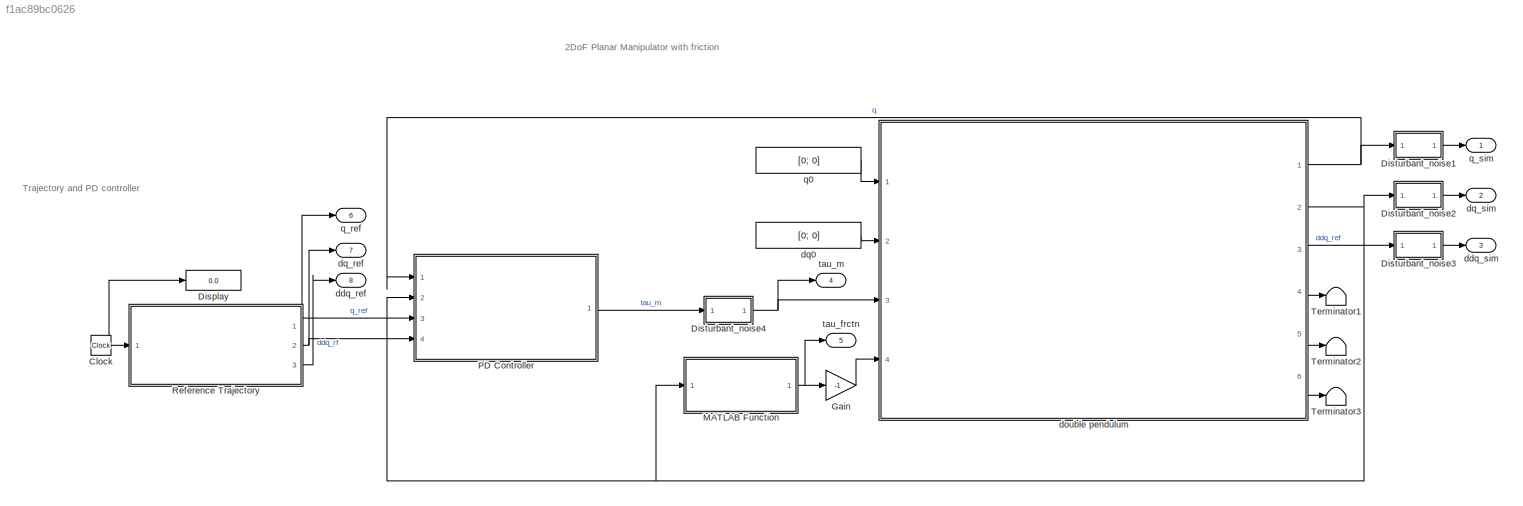
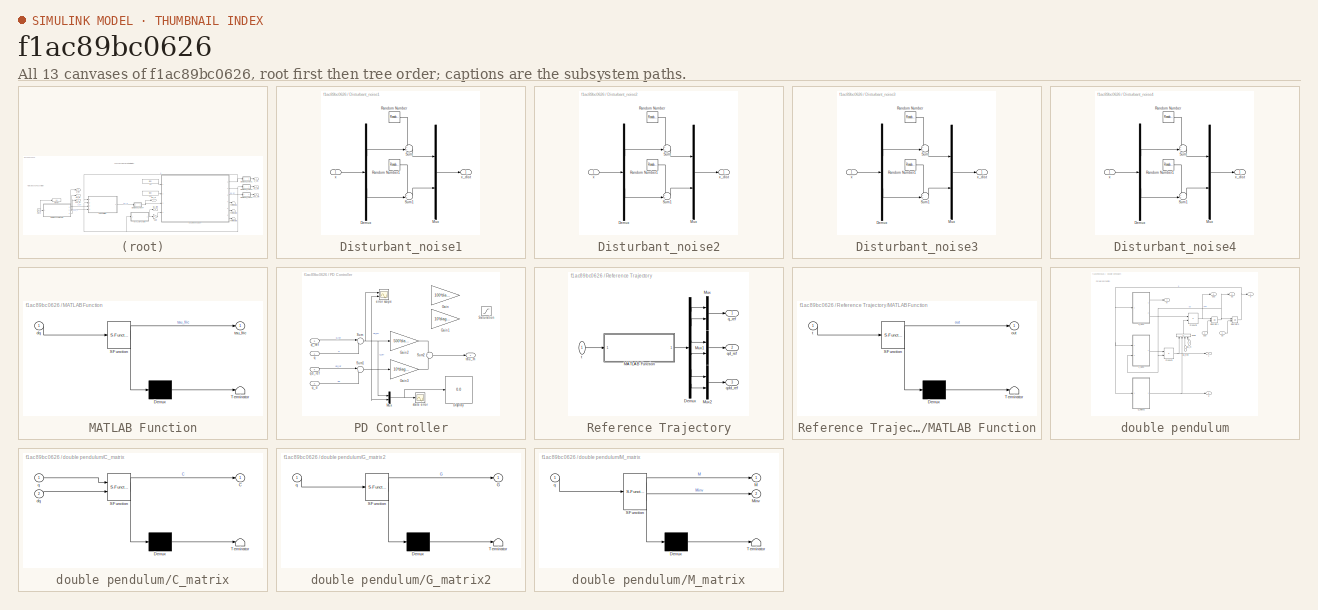
[diagram: thumbnail index - all 13 canvases of the model, root first then tree order]
MODEL slx_f1ac89bc0626
KIND model
CONFIG AbsTol = auto
CONFIG EnableMultiTasking = off
CONFIG FixedStep = 1e-3
CONFIG MaxStep = auto
CONFIG MinStep = auto
CONFIG RelTol = 1e-3
CONFIG SampleTimeConstraint = Unconstrained
CONFIG Solver = ode4
CONFIG SolverName = ode4
CONFIG StartTime = 0.0
CONFIG StopTime = 30
BLOCK [Clock] Clock
BLOCK [Display] Display
  Decimation = 1
  Ports = [1]
BLOCK [SubSystem] Disturbant_noise1
  Ports = [1, 1]
  RequestExecContextInheritance = off
BLOCK [Demux] Disturbant_noise1/Demux
  Outputs = 2
  Ports = [1, 2]
BLOCK [Mux] Disturbant_noise1/Mux
  DisplayOption = bar
  Inputs = 2
  Ports = [2, 1]
BLOCK [RandomNumber] Disturbant_noise1/Random Number
  SampleTime = T_smp
  Seed = seed
  Variance = q_dist_var
BLOCK [RandomNumber] Disturbant_noise1/Random Number1
  SampleTime = T_smp
  Seed = seed
  Variance = q_dist_var
BLOCK [Sum] Disturbant_noise1/Sum
  Inputs = ++|
  Ports = [2, 1]
BLOCK [Sum] Disturbant_noise1/Sum1
  Inputs = ++|
  Ports = [2, 1]
BLOCK [Inport] Disturbant_noise1/x
BLOCK [Outport] Disturbant_noise1/x_dist
  VectorParamsAs1DForOutWhenUnconnected = off
BLOCK [SubSystem] Disturbant_noise2
  Ports = [1, 1]
  RequestExecContextInheritance = off
BLOCK [Demux] Disturbant_noise2/Demux
  Outputs = 2
  Ports = [1, 2]
BLOCK [Mux] Disturbant_noise2/Mux
  DisplayOption = bar
  Inputs = 2
  Ports = [2, 1]
BLOCK [RandomNumber] Disturbant_noise2/Random Number
  SampleTime = T_smp
  Seed = seed
  Variance = q_dist_var
BLOCK [RandomNumber] Disturbant_noise2/Random Number1
  SampleTime = T_smp
  Seed = seed
  Variance = q_dist_var
BLOCK [Sum] Disturbant_noise2/Sum
  Inputs = ++|
  Ports = [2, 1]
BLOCK [Sum] Disturbant_noise2/Sum1
  Inputs = ++|
  Ports = [2, 1]
BLOCK [Inport] Disturbant_noise2/x
BLOCK [Outport] Disturbant_noise2/x_dist
  VectorParamsAs1DForOutWhenUnconnected = off
BLOCK [SubSystem] Disturbant_noise3
  Ports = [1, 1]
  RequestExecContextInheritance = off
BLOCK [Demux] Disturbant_noise3/Demux
  Outputs = 2
  Ports = [1, 2]
BLOCK [Mux] Disturbant_noise3/Mux
  DisplayOption = bar
  Inputs = 2
  Ports = [2, 1]
BLOCK [RandomNumber] Disturbant_noise3/Random Number
  SampleTime = T_smp
  Seed = seed
  Variance = q_dist_var
BLOCK [RandomNumber] Disturbant_noise3/Random Number1
  SampleTime = T_smp
  Seed = seed
  Variance = q_dist_var
BLOCK [Sum] Disturbant_noise3/Sum
  Inputs = ++|
  Ports = [2, 1]
BLOCK [Sum] Disturbant_noise3/Sum1
  Inputs = ++|
  Ports = [2, 1]
BLOCK [Inport] Disturbant_noise3/x
BLOCK [Outport] Disturbant_noise3/x_dist
  VectorParamsAs1DForOutWhenUnconnected = off
BLOCK [SubSystem] Disturbant_noise4
  Ports = [1, 1]
  RequestExecContextInheritance = off
BLOCK [Demux] Disturbant_noise4/Demux
  Outputs = 2
  Ports = [1, 2]
BLOCK [Mux] Disturbant_noise4/Mux
  DisplayOption = bar
  Inputs = 2
  Ports = [2, 1]
BLOCK [RandomNumber] Disturbant_noise4/Random Number
  SampleTime = T_smp
  Seed = seed
  Variance = q_dist_var
BLOCK [RandomNumber] Disturbant_noise4/Random Number1
  SampleTime = T_smp
  Seed = seed
  Variance = q_dist_var
BLOCK [Sum] Disturbant_noise4/Sum
  Inputs = ++|
  Ports = [2, 1]
BLOCK [Sum] Disturbant_noise4/Sum1
  Inputs = ++|
  Ports = [2, 1]
BLOCK [Inport] Disturbant_noise4/x
BLOCK [Outport] Disturbant_noise4/x_dist
  VectorParamsAs1DForOutWhenUnconnected = off
BLOCK [Gain] Gain
  Gain = -1
BLOCK [SubSystem] MATLAB Function
  ErrorFcn = Stateflow.Translate.translate
  PermitHierarchicalResolution = ExplicitOnly
  Ports = [1, 1]
  RequestExecContextInheritance = off
  SFBlockType = MATLAB Function
  TreatAsAtomicUnit = on
BLOCK [Demux] MATLAB Function/ Demux 
  Outputs = 1
  Ports = [1, 1]
BLOCK [S-Function] MATLAB Function/ SFunction 
  EnableBusSupport = off
  FunctionName = sf_sfun
  Parameters = constPar,f_c,f_nu
  PortCounts = [1 2]
  Ports = [1, 2]
  SFcnIsStateOwnerBlock = off
  SFunctionDeploymentMode = off
  Tag = Stateflow S-Function 3
BLOCK [Terminator] MATLAB Function/ Terminator 
BLOCK [Inport] MATLAB Function/dq
BLOCK [Outport] MATLAB Function/tau_fric
  VectorParamsAs1DForOutWhenUnconnected = off
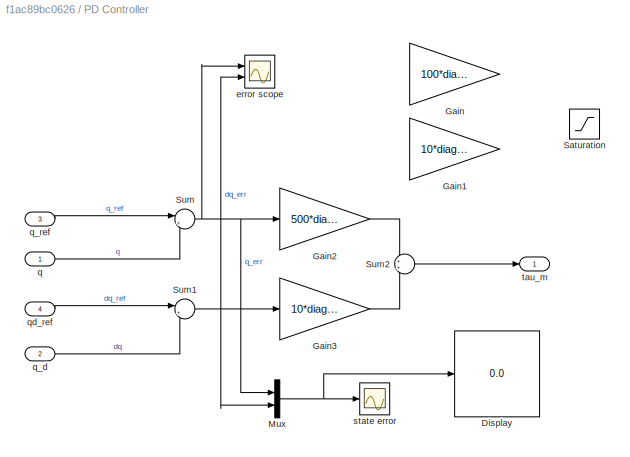
BLOCK [SubSystem] PD Controller
  Ports = [4, 1]
  RequestExecContextInheritance = off
BLOCK [Display] PD Controller/Display
  Decimation = 1
  Ports = [1]
BLOCK [Gain] PD Controller/Gain
  Commented = on
  Gain = 100*diag([10,1])
  Multiplication = Matrix(K*u)
BLOCK [Gain] PD Controller/Gain1
  Commented = on
  Gain = 10*diag([10,1])
  Multiplication = Matrix(K*u)
BLOCK [Gain] PD Controller/Gain2
  Gain = 500*diag([10,1])
  Multiplication = Matrix(K*u)
BLOCK [Gain] PD Controller/Gain3
  Gain = 10*diag([10,1])
  Multiplication = Matrix(K*u)
BLOCK [Mux] PD Controller/Mux
  DisplayOption = bar
  Inputs = 2
  Ports = [2, 1]
BLOCK [Saturate] PD Controller/Saturation
  Commented = on
  LowerLimit = constPar.minTorque
  UpperLimit = constPar.maxTorque
BLOCK [Sum] PD Controller/Sum
  Inputs = |+-
  Ports = [2, 1]
BLOCK [Sum] PD Controller/Sum1
  Inputs = |+-
  Ports = [2, 1]
BLOCK [Sum] PD Controller/Sum2
  Ports = [2, 1]
BLOCK [Scope] PD Controller/error scope
  Floating = off
  NumInputPorts = 2
  Ports = [2]
  ScopeSpecificationString = Simulink.scopes.TimeScopeBlockCfg('CurrentConfiguration', extmgr.ConfigurationSet(extmgr.Configuration('Core','General UI',true,'FigureColor',[0 0 0]),extmgr.Configuration('Core','Source UI',true),extmgr.Configuration('Sources','WiredSimulink',true,'DataLoggingVariableName','ScopeData2'),extmgr.Configuration('Visuals','Time Domain',true,'SerializedDisplays',{struct('MinYLimReal','-0.15115','MaxYLi...<+2631ch>
BLOCK [Inport] PD Controller/q
BLOCK [Inport] PD Controller/q_d
  Port = 2
BLOCK [Inport] PD Controller/q_ref
  Port = 3
BLOCK [Inport] PD Controller/qd_ref
  Port = 4
BLOCK [Scope] PD Controller/state error
  Floating = off
  NumInputPorts = 1
  Ports = [1]
  ScopeSpecificationString = Simulink.scopes.TimeScopeBlockCfg('CurrentConfiguration', extmgr.ConfigurationSet(extmgr.Configuration('Core','General UI',true),extmgr.Configuration('Core','Source UI',true),extmgr.Configuration('Sources','WiredSimulink',true,'DataLoggingVariableName','ScopeData2'),extmgr.Configuration('Visuals','Time Domain',true,'SerializedDisplays',{struct('MinYLimReal','-0.24012','MaxYLimReal','0.73566','YLab...<+1439ch>
BLOCK [Outport] PD Controller/tau_m
  VectorParamsAs1DForOutWhenUnconnected = off
BLOCK [SubSystem] Reference Trajectory
  Ports = [1, 3]
  RequestExecContextInheritance = off
BLOCK [Demux] Reference Trajectory/Demux
  Outputs = 6
  Ports = [1, 6]
BLOCK [SubSystem] Reference Trajectory/MATLAB Function
  ErrorFcn = Stateflow.Translate.translate
  PermitHierarchicalResolution = ExplicitOnly
  Ports = [1, 1]
  RequestExecContextInheritance = off
  SFBlockType = MATLAB Function
  TreatAsAtomicUnit = on
BLOCK [Demux] Reference Trajectory/MATLAB Function/ Demux 
  Outputs = 1
  Ports = [1, 1]
BLOCK [S-Function] Reference Trajectory/MATLAB Function/ SFunction 
  EnableBusSupport = off
  FunctionName = sf_sfun
  Parameters = constPar,lambdas
  PortCounts = [1 2]
  Ports = [1, 2]
  SFcnIsStateOwnerBlock = off
  SFunctionDeploymentMode = off
  Tag = Stateflow S-Function 2
BLOCK [Terminator] Reference Trajectory/MATLAB Function/ Terminator 
BLOCK [Outport] Reference Trajectory/MATLAB Function/out
  VectorParamsAs1DForOutWhenUnconnected = off
BLOCK [Inport] Reference Trajectory/MATLAB Function/t
BLOCK [Mux] Reference Trajectory/Mux
  DisplayOption = bar
  Inputs = 2
  Ports = [2, 1]
BLOCK [Mux] Reference Trajectory/Mux1
  DisplayOption = bar
  Inputs = 2
  Ports = [2, 1]
BLOCK [Mux] Reference Trajectory/Mux2
  DisplayOption = bar
  Inputs = 2
  Ports = [2, 1]
BLOCK [Outport] Reference Trajectory/q_ref
  VectorParamsAs1DForOutWhenUnconnected = off
BLOCK [Outport] Reference Trajectory/qd_ref
  Port = 2
  VectorParamsAs1DForOutWhenUnconnected = off
BLOCK [Outport] Reference Trajectory/qdd_ref
  Port = 3
  VectorParamsAs1DForOutWhenUnconnected = off
BLOCK [Inport] Reference Trajectory/t
  NameLocation = top
BLOCK [Terminator] Terminator1
BLOCK [Terminator] Terminator2
BLOCK [Terminator] Terminator3
BLOCK [Outport] ddq_ref
  Port = 8
  VectorParamsAs1DForOutWhenUnconnected = off
BLOCK [Outport] ddq_sim
  Port = 3
  VectorParamsAs1DForOutWhenUnconnected = off
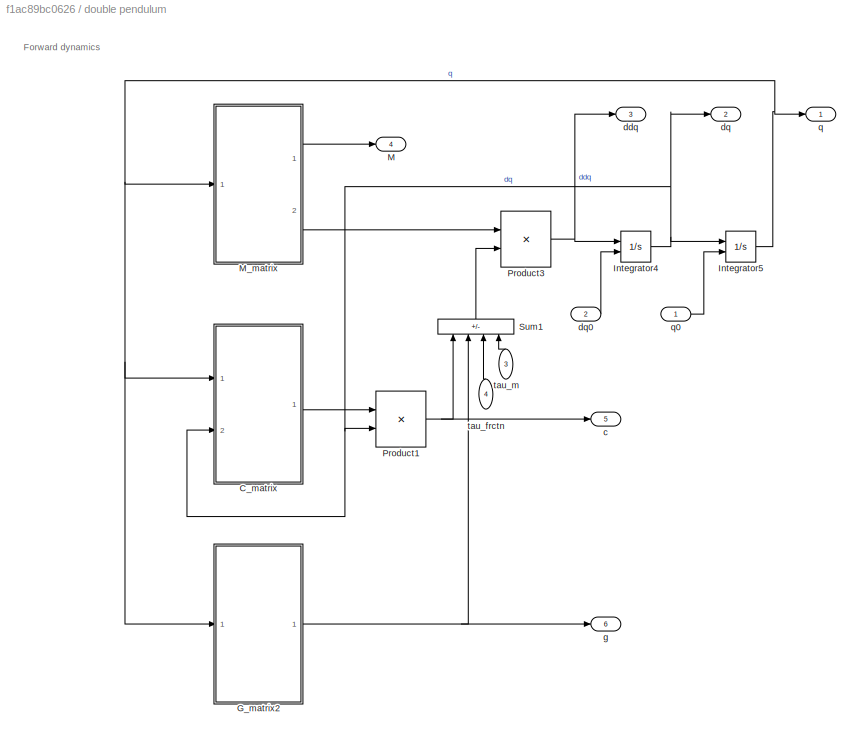
BLOCK [SubSystem] double pendulum
  Ports = [4, 6]
  RequestExecContextInheritance = off
BLOCK [SubSystem] double pendulum/C_matrix
  ErrorFcn = Stateflow.Translate.translate
  PermitHierarchicalResolution = ExplicitOnly
  Ports = [2, 1]
  RequestExecContextInheritance = off
  SFBlockType = MATLAB Function
  TreatAsAtomicUnit = on
BLOCK [Demux] double pendulum/C_matrix/ Demux 
  Outputs = 1
  Ports = [1, 1]
BLOCK [S-Function] double pendulum/C_matrix/ SFunction 
  EnableBusSupport = off
  FunctionName = sf_sfun
  Parameters = l1,lc2,m2
  PortCounts = [2 2]
  Ports = [2, 2]
  SFcnIsStateOwnerBlock = off
  SFunctionDeploymentMode = off
  Tag = Stateflow S-Function 6
BLOCK [Terminator] double pendulum/C_matrix/ Terminator 
BLOCK [Outport] double pendulum/C_matrix/C
  VectorParamsAs1DForOutWhenUnconnected = off
BLOCK [Inport] double pendulum/C_matrix/dq
  Port = 2
BLOCK [Inport] double pendulum/C_matrix/q
BLOCK [SubSystem] double pendulum/G_matrix2
  ErrorFcn = Stateflow.Translate.translate
  PermitHierarchicalResolution = ExplicitOnly
  Ports = [1, 1]
  RequestExecContextInheritance = off
  SFBlockType = MATLAB Function
  TreatAsAtomicUnit = on
BLOCK [Demux] double pendulum/G_matrix2/ Demux 
  Outputs = 1
  Ports = [1, 1]
BLOCK [S-Function] double pendulum/G_matrix2/ SFunction 
  EnableBusSupport = off
  FunctionName = sf_sfun
  Parameters = g,l1,lc1,lc2,m1,m2
  PortCounts = [1 2]
  Ports = [1, 2]
  SFcnIsStateOwnerBlock = off
  SFunctionDeploymentMode = off
  Tag = Stateflow S-Function 7
BLOCK [Terminator] double pendulum/G_matrix2/ Terminator 
BLOCK [Outport] double pendulum/G_matrix2/G
  VectorParamsAs1DForOutWhenUnconnected = off
BLOCK [Inport] double pendulum/G_matrix2/q
BLOCK [Integrator] double pendulum/Integrator4
  InitialCondition = [0,0]
  InitialConditionSource = external
  Ports = [2, 1]
BLOCK [Integrator] double pendulum/Integrator5
  InitialConditionSource = external
  Ports = [2, 1]
BLOCK [Outport] double pendulum/M
  Port = 4
  VectorParamsAs1DForOutWhenUnconnected = off
BLOCK [SubSystem] double pendulum/M_matrix
  ErrorFcn = Stateflow.Translate.translate
  PermitHierarchicalResolution = ExplicitOnly
  Ports = [1, 2]
  RequestExecContextInheritance = off
  SFBlockType = MATLAB Function
  TreatAsAtomicUnit = on
BLOCK [Demux] double pendulum/M_matrix/ Demux 
  Outputs = 1
  Ports = [1, 1]
BLOCK [S-Function] double pendulum/M_matrix/ SFunction 
  EnableBusSupport = off
  FunctionName = sf_sfun
  Parameters = I1zz,I2zz,l1,lc1,lc2,m1,m2
  PortCounts = [1 3]
  Ports = [1, 3]
  SFcnIsStateOwnerBlock = off
  SFunctionDeploymentMode = off
  Tag = Stateflow S-Function 9
BLOCK [Terminator] double pendulum/M_matrix/ Terminator 
BLOCK [Outport] double pendulum/M_matrix/M
  VectorParamsAs1DForOutWhenUnconnected = off
BLOCK [Outport] double pendulum/M_matrix/Minv
  Port = 2
  VectorParamsAs1DForOutWhenUnconnected = off
BLOCK [Inport] double pendulum/M_matrix/q
BLOCK [Product] double pendulum/Product1
  Multiplication = Matrix(*)
  Ports = [2, 1]
BLOCK [Product] double pendulum/Product3
  Multiplication = Matrix(*)
  Ports = [2, 1]
BLOCK [Sum] double pendulum/Sum1
  IconShape = rectangular
  Inputs = ---+
  NameLocation = right
  Ports = [4, 1]
BLOCK [Outport] double pendulum/c
  Port = 5
  VectorParamsAs1DForOutWhenUnconnected = off
BLOCK [Outport] double pendulum/ddq
  Port = 3
  VectorParamsAs1DForOutWhenUnconnected = off
BLOCK [Outport] double pendulum/dq
  Port = 2
  VectorParamsAs1DForOutWhenUnconnected = off
BLOCK [Inport] double pendulum/dq0
  Port = 2
BLOCK [Outport] double pendulum/g
  Port = 6
  VectorParamsAs1DForOutWhenUnconnected = off
BLOCK [Outport] double pendulum/q
  VectorParamsAs1DForOutWhenUnconnected = off
BLOCK [Inport] double pendulum/q0
BLOCK [Inport] double pendulum/tau_frctn
  NameLocation = right
  Port = 4
BLOCK [Inport] double pendulum/tau_m
  NameLocation = right
  Port = 3
BLOCK [Constant] dq0
  Value = [0; 0]
BLOCK [Outport] dq_ref
  Port = 7
  VectorParamsAs1DForOutWhenUnconnected = off
BLOCK [Outport] dq_sim
  Port = 2
  VectorParamsAs1DForOutWhenUnconnected = off
BLOCK [Constant] q0
  Value = [0; 0]
BLOCK [Outport] q_ref
  Port = 6
  VectorParamsAs1DForOutWhenUnconnected = off
BLOCK [Outport] q_sim
  VectorParamsAs1DForOutWhenUnconnected = off
BLOCK [Outport] tau_frctn
  Port = 5
  VectorParamsAs1DForOutWhenUnconnected = off
BLOCK [Outport] tau_m
  Port = 4
  VectorParamsAs1DForOutWhenUnconnected = off
ANNOTATION (root): 2DoF Planar Manipulator with friction
ANNOTATION (root): Trajectory and PD controller
ANNOTATION double pendulum: Forward dynamics
NET Clock:1 -> Display:1, Reference Trajectory:1
LINE Disturbant_noise1/Demux:1 -> Disturbant_noise1/Sum:2
LINE Disturbant_noise1/Demux:2 -> Disturbant_noise1/Sum1:2
LINE Disturbant_noise1/Mux:1 -> Disturbant_noise1/x_dist:1
LINE Disturbant_noise1/Random Number1:1 -> Disturbant_noise1/Sum1:1
LINE Disturbant_noise1/Random Number:1 -> Disturbant_noise1/Sum:1
LINE Disturbant_noise1/Sum1:1 -> Disturbant_noise1/Mux:2
LINE Disturbant_noise1/Sum:1 -> Disturbant_noise1/Mux:1
LINE Disturbant_noise1/x:1 -> Disturbant_noise1/Demux:1
LINE Disturbant_noise1:1 -> q_sim:1
LINE Disturbant_noise2/Demux:1 -> Disturbant_noise2/Sum:2
LINE Disturbant_noise2/Demux:2 -> Disturbant_noise2/Sum1:2
LINE Disturbant_noise2/Mux:1 -> Disturbant_noise2/x_dist:1
LINE Disturbant_noise2/Random Number1:1 -> Disturbant_noise2/Sum1:1
LINE Disturbant_noise2/Random Number:1 -> Disturbant_noise2/Sum:1
LINE Disturbant_noise2/Sum1:1 -> Disturbant_noise2/Mux:2
LINE Disturbant_noise2/Sum:1 -> Disturbant_noise2/Mux:1
LINE Disturbant_noise2/x:1 -> Disturbant_noise2/Demux:1
LINE Disturbant_noise2:1 -> dq_sim:1
LINE Disturbant_noise3/Demux:1 -> Disturbant_noise3/Sum:2
LINE Disturbant_noise3/Demux:2 -> Disturbant_noise3/Sum1:2
LINE Disturbant_noise3/Mux:1 -> Disturbant_noise3/x_dist:1
LINE Disturbant_noise3/Random Number1:1 -> Disturbant_noise3/Sum1:1
LINE Disturbant_noise3/Random Number:1 -> Disturbant_noise3/Sum:1
LINE Disturbant_noise3/Sum1:1 -> Disturbant_noise3/Mux:2
LINE Disturbant_noise3/Sum:1 -> Disturbant_noise3/Mux:1
LINE Disturbant_noise3/x:1 -> Disturbant_noise3/Demux:1
LINE Disturbant_noise3:1 -> ddq_sim:1
LINE Disturbant_noise4/Demux:1 -> Disturbant_noise4/Sum:2
LINE Disturbant_noise4/Demux:2 -> Disturbant_noise4/Sum1:2
LINE Disturbant_noise4/Mux:1 -> Disturbant_noise4/x_dist:1
LINE Disturbant_noise4/Random Number1:1 -> Disturbant_noise4/Sum1:1
LINE Disturbant_noise4/Random Number:1 -> Disturbant_noise4/Sum:1
LINE Disturbant_noise4/Sum1:1 -> Disturbant_noise4/Mux:2
LINE Disturbant_noise4/Sum:1 -> Disturbant_noise4/Mux:1
LINE Disturbant_noise4/x:1 -> Disturbant_noise4/Demux:1
NET Disturbant_noise4:1 -> double pendulum:3, tau_m:1
LINE Gain:1 -> double pendulum:4
NET MATLAB Function:1 -> Gain:1, tau_frctn:1
LINE PD Controller/Gain2:1 -> PD Controller/Sum2:1
LINE PD Controller/Gain3:1 -> PD Controller/Sum2:2
NET PD Controller/Mux:1 -> PD Controller/Display:1, PD Controller/state error:1
NET PD Controller/Sum1:1 -> PD Controller/Gain3:1, PD Controller/Mux:2, PD Controller/error scope:2
LINE PD Controller/Sum2:1 -> PD Controller/tau_m:1
NET PD Controller/Sum:1 -> PD Controller/Gain2:1, PD Controller/Mux:1, PD Controller/error scope:1
LINE PD Controller/q:1 -> PD Controller/Sum:2
LINE PD Controller/q_d:1 -> PD Controller/Sum1:2
LINE PD Controller/q_ref:1 -> PD Controller/Sum:1
LINE PD Controller/qd_ref:1 -> PD Controller/Sum1:1
LINE PD Controller:1 -> Disturbant_noise4:1
LINE Reference Trajectory/Demux:1 -> Reference Trajectory/Mux:1
LINE Reference Trajectory/Demux:2 -> Reference Trajectory/Mux:2
LINE Reference Trajectory/Demux:3 -> Reference Trajectory/Mux1:1
LINE Reference Trajectory/Demux:4 -> Reference Trajectory/Mux1:2
LINE Reference Trajectory/Demux:5 -> Reference Trajectory/Mux2:1
LINE Reference Trajectory/Demux:6 -> Reference Trajectory/Mux2:2
LINE Reference Trajectory/MATLAB Function:1 -> Reference Trajectory/Demux:1
LINE Reference Trajectory/Mux1:1 -> Reference Trajectory/qd_ref:1
LINE Reference Trajectory/Mux2:1 -> Reference Trajectory/qdd_ref:1
LINE Reference Trajectory/Mux:1 -> Reference Trajectory/q_ref:1
LINE Reference Trajectory/t:1 -> Reference Trajectory/MATLAB Function:1
NET Reference Trajectory:1 -> PD Controller:3, q_ref:1
NET Reference Trajectory:2 -> PD Controller:4, dq_ref:1
LINE Reference Trajectory:3 -> ddq_ref:1
LINE double pendulum/C_matrix:1 -> double pendulum/Product1:1
NET double pendulum/G_matrix2:1 -> double pendulum/Sum1:2, double pendulum/g:1
NET double pendulum/Integrator4:1 -> double pendulum/C_matrix:2, double pendulum/Integrator5:1, double pendulum/Product1:2, double pendulum/dq:1
NET double pendulum/Integrator5:1 -> double pendulum/C_matrix:1, double pendulum/G_matrix2:1, double pendulum/M_matrix:1, double pendulum/q:1
LINE double pendulum/M_matrix:1 -> double pendulum/M:1
LINE double pendulum/M_matrix:2 -> double pendulum/Product3:1
NET double pendulum/Product1:1 -> double pendulum/Sum1:1, double pendulum/c:1
NET double pendulum/Product3:1 -> double pendulum/Integrator4:1, double pendulum/ddq:1
LINE double pendulum/Sum1:1 -> double pendulum/Product3:2
LINE double pendulum/dq0:1 -> double pendulum/Integrator4:2
LINE double pendulum/q0:1 -> double pendulum/Integrator5:2
LINE double pendulum/tau_frctn:1 -> double pendulum/Sum1:3
LINE double pendulum/tau_m:1 -> double pendulum/Sum1:4
NET double pendulum:1 -> Disturbant_noise1:1, PD Controller:1
NET double pendulum:2 -> Disturbant_noise2:1, MATLAB Function:1, PD Controller:2
LINE double pendulum:3 -> Disturbant_noise3:1
LINE double pendulum:4 -> Terminator1:1
LINE double pendulum:5 -> Terminator2:1
LINE double pendulum:6 -> Terminator3:1
LINE dq0:1 -> double pendulum:2
LINE q0:1 -> double pendulum:1
note: NET lines group one-source signal fan-out (src -> all destinations, sorted); 1:1 wires keep LINE
CHART Reference Trajectory/MATLAB Function states=1 transitions=1
  STATE_LABEL 'eML_blk_kernel()'
  STATE_LABEL 'SCRIPT:\nfunction out = fcn_twoLink_refOptTrajectory(t, constPar, lambdas)\n    \n    Q = zeros(6,1);\n    if(constPar.test_trajectory)\n        param           = constPar.a_test;\n    else\n        param           = constPar.a_opt;   \n    end\n    noj=2;\n    omega           = constPar.omega;\n    constPar.n_cos = numel(param)/noj;\n    n_cos  = constPar.n_cos;\n   \n    a_im = zeros(2,5); % Parameters from e...<+1255ch>'
CHART MATLAB Function states=1 transitions=1
  STATE_LABEL 'eML_blk_kernel()'
  STATE_LABEL 'SCRIPT:\nfunction tau_fric = fcn_friction_twoLink(dq, f_nu, f_c, constPar)\n    fvis = f_nu*eye(2)*dq;\n\n    if constPar.useCoulomb  % A continuous friction model to ease the simulation\n        tau_fric = fvis + f_c*eye(2)*tanh(constPar.tanh_coef*dq);\n    else\n        tau_fric = fvis;\n    end\nend'
CHART double pendulum/C_matrix states=1 transitions=1
  STATE_LABEL 'eML_blk_kernel()'
  STATE_LABEL 'SCRIPT:\nfunction C = C_matrix(q,dq, l1, lc2, m2)\n%#codegen\n\n%    This function was generated by the Symbolic Math Toolbox version 8.3.\n%    05-Nov-2019 15:18:30\n\ndq1  = dq(1);\ndq2  = dq(2);\nq1   = q(1);\nq2   = q(2);\n\nt2 = sin(q2);\nC = reshape([-dq2.*l1.*lc2.*m2.*t2,dq1.*l1.*lc2.*m2.*t2,-l1.*lc2.*m2.*t2.*(dq1+dq2),0.0],[2,2]);\n'
CHART double pendulum/G_matrix2 states=1 transitions=1
  STATE_LABEL 'eML_blk_kernel()'
  STATE_LABEL 'SCRIPT:\nfunction G = G_matrix(q, g, l1, lc1, lc2, m1, m2)\n%#codegen\n\n%    This function was generated by the Symbolic Math Toolbox version 8.3.\n%    05-Nov-2019 15:18:30\n\nq1   = q(1);\nq2   = q(2);\n\nt2 = cos(q1);\nt3 = q1+q2;\nt4 = cos(t3);\nG = [g.*m2.*(l1.*t2+lc2.*t4)+g.*lc1.*m1.*t2;g.*lc2.*m2.*t4];\n'
CHART double pendulum/M_matrix states=1 transitions=1
  STATE_LABEL 'eML_blk_kernel()'
  STATE_LABEL 'SCRIPT:\nfunction [M, Minv] = M_matrix(q, I1zz, I2zz, l1, lc1, lc2, m1, m2)\n%#codegen\n\n%    This function was generated by the Symbolic Math Toolbox version 8.3.\n%    05-Nov-2019 15:18:29\n\nq1   = q(1);\nq2   = q(2);\n\nt2 = cos(q2);\nt3 = lc2.^2;\nt4 = m2.*t3;\nt5 = l1.*lc2.*m2.*t2;\nt6 = I2zz+t4+t5;\nM = reshape([I1zz+t5+t6+l1.^2.*m2+lc1.^2.*m1,t6,t6,I2zz+t4],[2,2]);\nMinv = pinv(M);'
CHART  states=0 transitions=0
CHART  states=0 transitions=0
CHART  states=0 transitions=0
CHART  states=0 transitions=0
CHART  states=0 transitions=0
